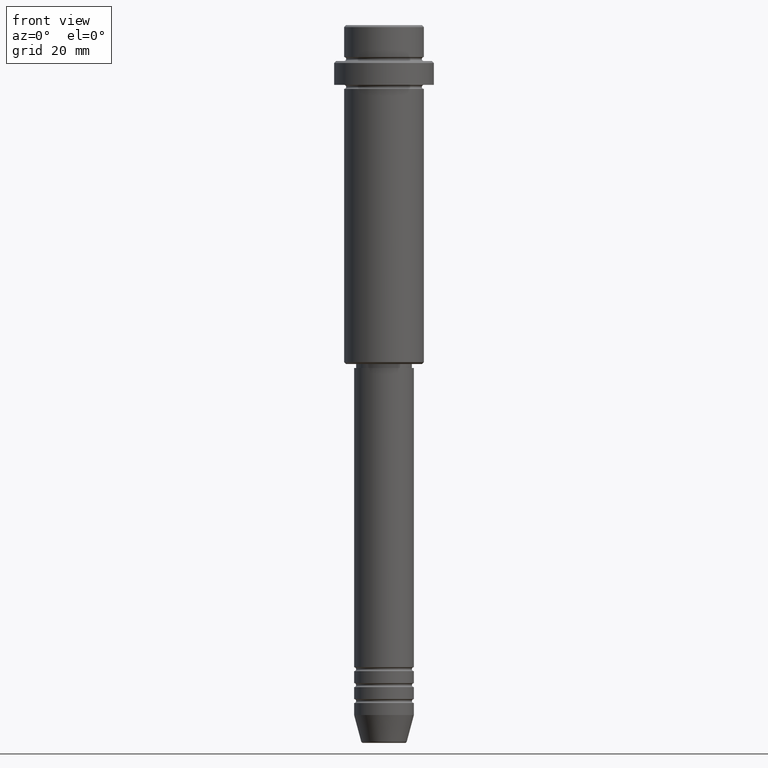
[diagram: clean part render]
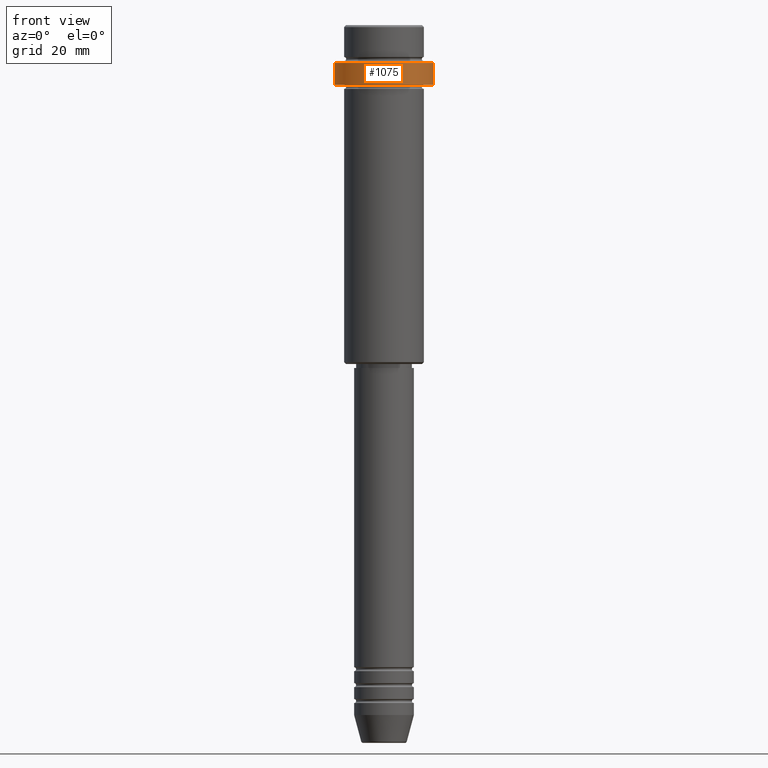
[diagram: same view with one face highlighted and labeled with its STEP entity id]
A machine part, front view. The second image highlights one B-rep face of the part: STEP entity #1075.
In plain terms, the highlighted cylindrical surface (partial cylindrical patch) has radius 12.5 mm, axis along (-0, -0, 1).
Its self-contained STEP definition (entity closure, byte-faithful):
#10 = LINE ( 'NONE', #449, #41 ) ;
#41 = VECTOR ( 'NONE', #235, 1000.000000000000000 ) ;
#43 = ORIENTED_EDGE ( 'NONE', *, *, #343, .T. ) ;
#85 = VERTEX_POINT ( 'NONE', #1051 ) ;
#109 = DIRECTION ( 'NONE',  ( -0.000000000000000000, -0.000000000000000000, 1.000000000000000000 ) ) ;
#128 = DIRECTION ( 'NONE',  ( 1.000000000000000000, 0.000000000000000000, 0.000000000000000000 ) ) ;
#134 = DIRECTION ( 'NONE',  ( -0.000000000000000000, -0.000000000000000000, 1.000000000000000000 ) ) ;
#165 = EDGE_LOOP ( 'NONE', ( #471, #1029, #43, #1009 ) ) ;
#212 = CIRCLE ( 'NONE', #366, 12.50000000000000000 ) ;
#235 = DIRECTION ( 'NONE',  ( -0.000000000000000000, -0.000000000000000000, 1.000000000000000000 ) ) ;
#281 = CARTESIAN_POINT ( 'NONE',  ( 12.50000000000000000, 0.000000000000000000, -15.00000000000000000 ) ) ;
#285 = DIRECTION ( 'NONE',  ( 1.000000000000000000, 0.000000000000000000, 0.000000000000000000 ) ) ;
#343 = EDGE_CURVE ( 'NONE', #491, #1070, #860, .T. ) ;
#364 = AXIS2_PLACEMENT_3D ( 'NONE', #1007, #620, #285 ) ;
#366 = AXIS2_PLACEMENT_3D ( 'NONE', #1378, #590, #128 ) ;
#449 = CARTESIAN_POINT ( 'NONE',  ( -12.50000000000000000, 1.530808498934191521E-15, 0.000000000000000000 ) ) ;
#471 = ORIENTED_EDGE ( 'NONE', *, *, #1062, .F. ) ;
#491 = VERTEX_POINT ( 'NONE', #281 ) ;
#590 = DIRECTION ( 'NONE',  ( 0.000000000000000000, 0.000000000000000000, -1.000000000000000000 ) ) ;
#620 = DIRECTION ( 'NONE',  ( -0.000000000000000000, -0.000000000000000000, 1.000000000000000000 ) ) ;
#626 = EDGE_CURVE ( 'NONE', #1385, #491, #879, .T. ) ;
#666 = CARTESIAN_POINT ( 'NONE',  ( 12.50000000000000000, 0.000000000000000000, -9.500000000000005329 ) ) ;
#670 = CARTESIAN_POINT ( 'NONE',  ( 0.000000000000000000, 0.000000000000000000, 0.000000000000000000 ) ) ;
#675 = AXIS2_PLACEMENT_3D ( 'NONE', #670, #134, #823 ) ;
#823 = DIRECTION ( 'NONE',  ( 1.000000000000000000, 0.000000000000000000, 0.000000000000000000 ) ) ;
#860 = LINE ( 'NONE', #1300, #862 ) ;
#862 = VECTOR ( 'NONE', #109, 1000.000000000000000 ) ;
#879 = CIRCLE ( 'NONE', #364, 12.50000000000000000 ) ;
#1007 = CARTESIAN_POINT ( 'NONE',  ( 0.000000000000000000, 0.000000000000000000, -15.00000000000000000 ) ) ;
#1009 = ORIENTED_EDGE ( 'NONE', *, *, #1151, .T. ) ;
#1029 = ORIENTED_EDGE ( 'NONE', *, *, #626, .T. ) ;
#1051 = CARTESIAN_POINT ( 'NONE',  ( -12.50000000000000000, 1.530808498934191521E-15, -9.500000000000005329 ) ) ;
#1062 = EDGE_CURVE ( 'NONE', #1385, #85, #10, .T. ) ;
#1070 = VERTEX_POINT ( 'NONE', #666 ) ;
#1075 = ADVANCED_FACE ( 'NONE', ( #1221 ), #1115, .T. ) ;
#1115 = CYLINDRICAL_SURFACE ( 'NONE', #675, 12.50000000000000000 ) ;
#1151 = EDGE_CURVE ( 'NONE', #1070, #85, #212, .T. ) ;
#1221 = FACE_OUTER_BOUND ( 'NONE', #165, .T. ) ;
#1290 = CARTESIAN_POINT ( 'NONE',  ( -12.50000000000000000, 1.530808498934191521E-15, -15.00000000000000000 ) ) ;
#1300 = CARTESIAN_POINT ( 'NONE',  ( 12.50000000000000000, 0.000000000000000000, 0.000000000000000000 ) ) ;
#1378 = CARTESIAN_POINT ( 'NONE',  ( 0.000000000000000000, 0.000000000000000000, -9.500000000000005329 ) ) ;
#1385 = VERTEX_POINT ( 'NONE', #1290 ) ;